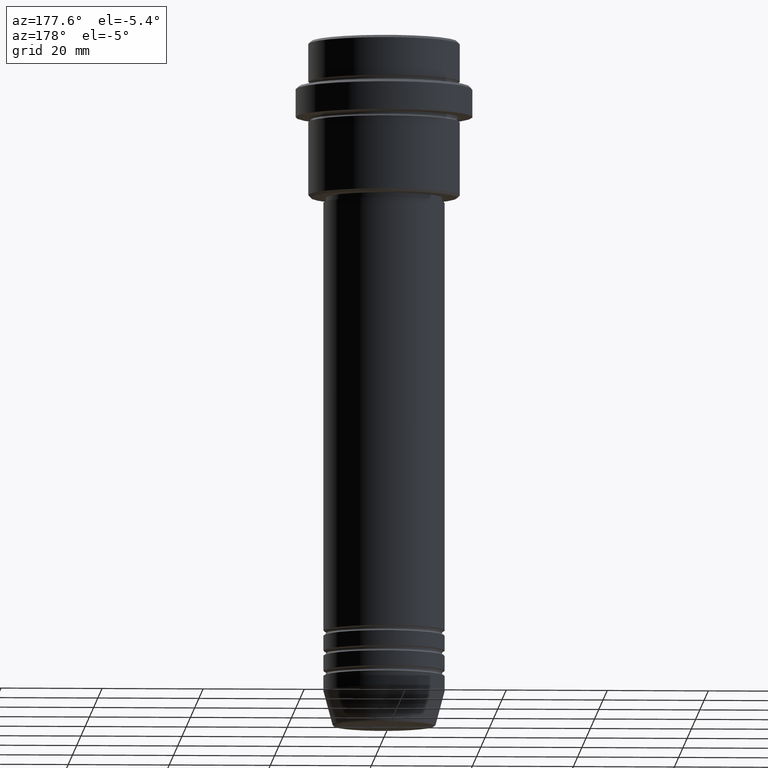
[diagram: clean part render]
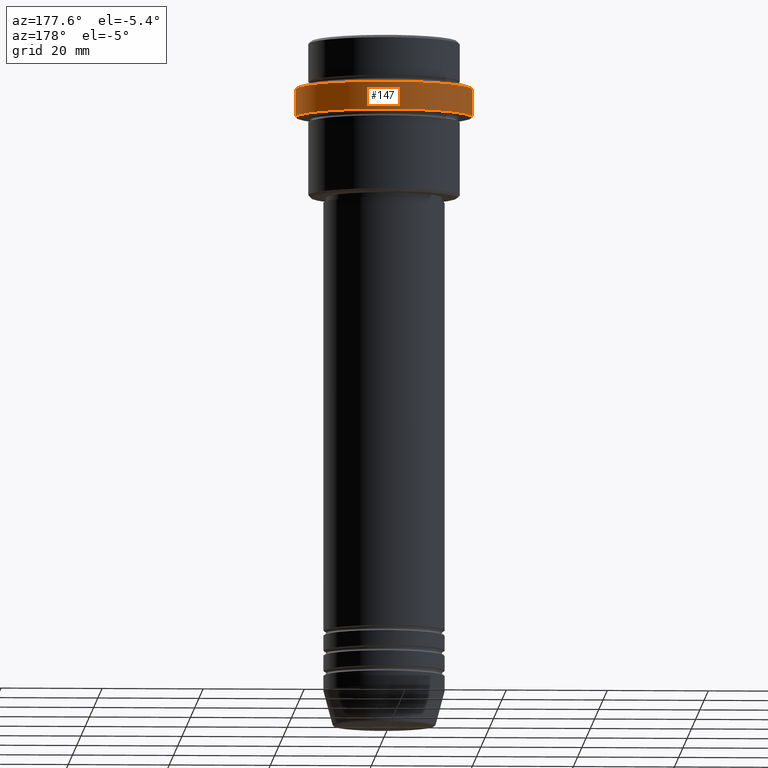
[diagram: same view with one face highlighted and labeled with its STEP entity id]
A machine part, auxiliary view. The second image highlights one B-rep face of the part: STEP entity #147.
In plain terms, the highlighted cylindrical surface (partial cylindrical patch) has radius 17.5 mm, axis along (-0, -0, 1).
Its self-contained STEP definition (entity closure, byte-faithful):
#36 = CARTESIAN_POINT ( 'NONE',  ( 0.000000000000000000, 0.000000000000000000, 0.000000000000000000 ) ) ;
#70 = CIRCLE ( 'NONE', #802, 17.50000000000000000 ) ;
#101 = DIRECTION ( 'NONE',  ( 1.000000000000000000, 0.000000000000000000, 0.000000000000000000 ) ) ;
#143 = VERTEX_POINT ( 'NONE', #371 ) ;
#147 = ADVANCED_FACE ( 'NONE', ( #794 ), #1217, .T. ) ;
#168 = DIRECTION ( 'NONE',  ( 1.000000000000000000, 0.000000000000000000, 0.000000000000000000 ) ) ;
#353 = CIRCLE ( 'NONE', #1183, 17.50000000000000000 ) ;
#355 = VECTOR ( 'NONE', #1090, 1000.000000000000000 ) ;
#371 = CARTESIAN_POINT ( 'NONE',  ( -17.50000000000000000, 2.143131898507868248E-15, -15.00000000000000000 ) ) ;
#413 = ORIENTED_EDGE ( 'NONE', *, *, #591, .T. ) ;
#475 = EDGE_LOOP ( 'NONE', ( #413, #1092, #1161, #1210 ) ) ;
#491 = CARTESIAN_POINT ( 'NONE',  ( -17.50000000000000000, 2.143131898507868248E-15, -9.500000000000014211 ) ) ;
#497 = VECTOR ( 'NONE', #1109, 1000.000000000000000 ) ;
#591 = EDGE_CURVE ( 'NONE', #671, #143, #70, .T. ) ;
#671 = VERTEX_POINT ( 'NONE', #1290 ) ;
#672 = EDGE_CURVE ( 'NONE', #1392, #785, #353, .T. ) ;
#785 = VERTEX_POINT ( 'NONE', #992 ) ;
#794 = FACE_OUTER_BOUND ( 'NONE', #475, .T. ) ;
#800 = LINE ( 'NONE', #909, #497 ) ;
#802 = AXIS2_PLACEMENT_3D ( 'NONE', #1144, #836, #168 ) ;
#804 = DIRECTION ( 'NONE',  ( -0.000000000000000000, -0.000000000000000000, 1.000000000000000000 ) ) ;
#812 = EDGE_CURVE ( 'NONE', #143, #1392, #800, .T. ) ;
#836 = DIRECTION ( 'NONE',  ( -0.000000000000000000, -0.000000000000000000, 1.000000000000000000 ) ) ;
#854 = DIRECTION ( 'NONE',  ( 1.000000000000000000, 0.000000000000000000, 0.000000000000000000 ) ) ;
#909 = CARTESIAN_POINT ( 'NONE',  ( -17.50000000000000000, 2.143131898507868248E-15, 0.000000000000000000 ) ) ;
#992 = CARTESIAN_POINT ( 'NONE',  ( 17.50000000000000000, 0.000000000000000000, -9.500000000000014211 ) ) ;
#1003 = CARTESIAN_POINT ( 'NONE',  ( 17.50000000000000000, 0.000000000000000000, 0.000000000000000000 ) ) ;
#1090 = DIRECTION ( 'NONE',  ( -0.000000000000000000, -0.000000000000000000, 1.000000000000000000 ) ) ;
#1092 = ORIENTED_EDGE ( 'NONE', *, *, #812, .T. ) ;
#1109 = DIRECTION ( 'NONE',  ( -0.000000000000000000, -0.000000000000000000, 1.000000000000000000 ) ) ;
#1144 = CARTESIAN_POINT ( 'NONE',  ( 0.000000000000000000, 0.000000000000000000, -15.00000000000000000 ) ) ;
#1161 = ORIENTED_EDGE ( 'NONE', *, *, #672, .T. ) ;
#1183 = AXIS2_PLACEMENT_3D ( 'NONE', #1404, #1409, #854 ) ;
#1210 = ORIENTED_EDGE ( 'NONE', *, *, #1309, .F. ) ;
#1217 = CYLINDRICAL_SURFACE ( 'NONE', #1366, 17.50000000000000000 ) ;
#1290 = CARTESIAN_POINT ( 'NONE',  ( 17.50000000000000000, 0.000000000000000000, -15.00000000000000000 ) ) ;
#1309 = EDGE_CURVE ( 'NONE', #671, #785, #1331, .T. ) ;
#1331 = LINE ( 'NONE', #1003, #355 ) ;
#1366 = AXIS2_PLACEMENT_3D ( 'NONE', #36, #804, #101 ) ;
#1392 = VERTEX_POINT ( 'NONE', #491 ) ;
#1404 = CARTESIAN_POINT ( 'NONE',  ( 0.000000000000000000, 0.000000000000000000, -9.500000000000014211 ) ) ;
#1409 = DIRECTION ( 'NONE',  ( 0.000000000000000000, 0.000000000000000000, -1.000000000000000000 ) ) ;